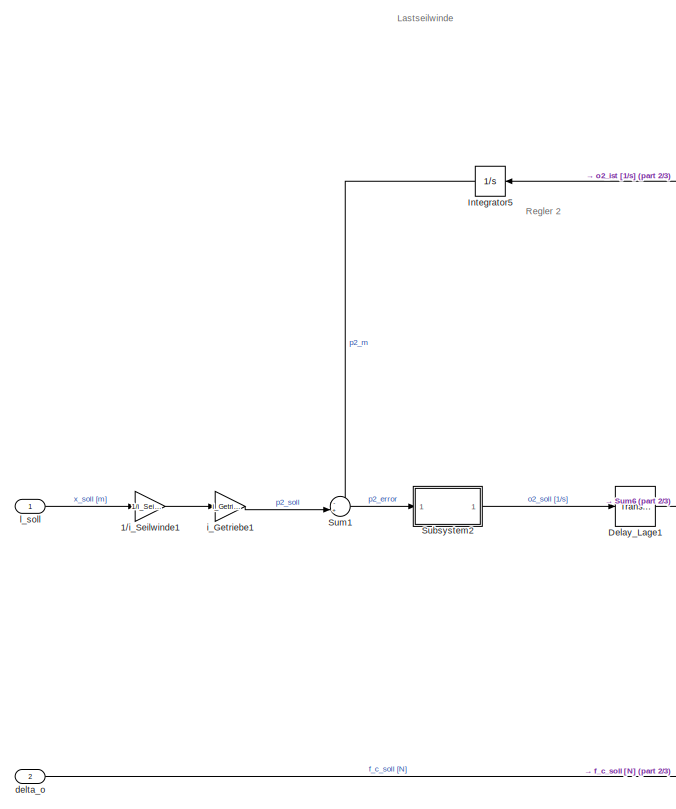
[diagram: root canvas - part 1/3, left side, full height]
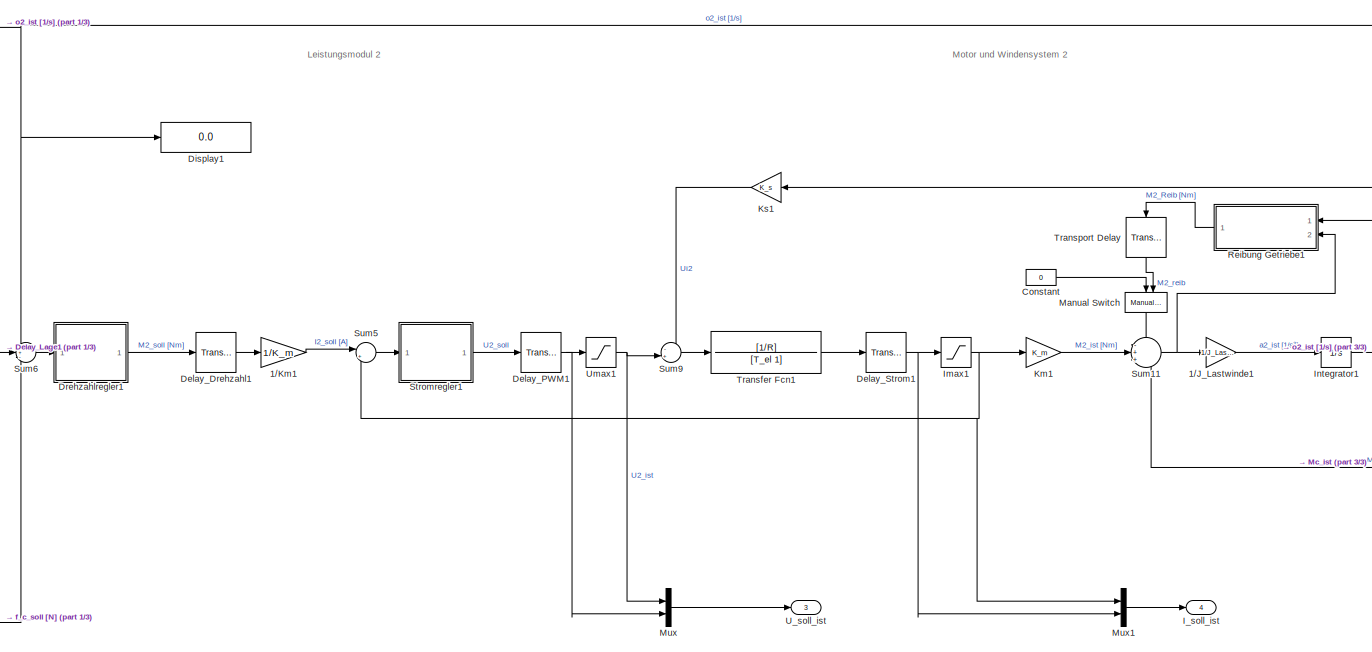
[diagram: root canvas - part 2/3, center side, full height]
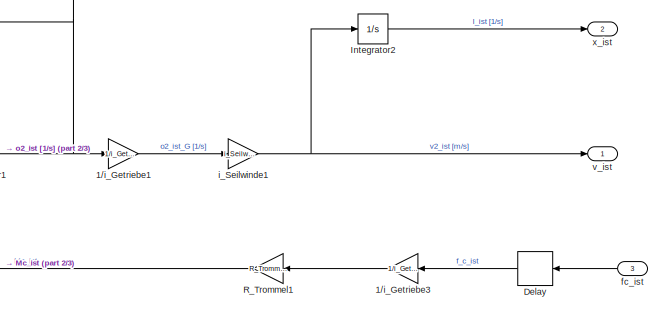
[diagram: root canvas - part 3/3, middle right region]
MODEL slx_6d760ac3472f
KIND model
CONFIG AbsTol = auto
CONFIG EnableMultiTasking = off
CONFIG FixedStep = stepsize
CONFIG MaxStep = auto
CONFIG MinStep = auto
CONFIG RelTol = 1e-3
CONFIG SampleTimeConstraint = Unconstrained
CONFIG Solver = FixedStepAuto
CONFIG SolverName = FixedStepAuto
CONFIG StartTime = 0.0
CONFIG StopTime = tend_sim
BLOCK [Gain] 1//J_Lastwinde1
  Gain = 1/J_Lastwinde
BLOCK [Gain] 1//Km1
  Gain = 1/K_m
BLOCK [Gain] 1//i_Getriebe1
  Gain = 1/i_Getriebe
BLOCK [Gain] 1//i_Getriebe3
  Gain = 1/i_Getriebe
BLOCK [Gain] 1//i_Seilwinde1
  Gain = 1/i_Seilwinde
BLOCK [Constant] Constant
  Value = 0
BLOCK [Delay] Delay
  DelayLength = 1
  InputPortMap = u0
  NameLocation = top
  Ports = [1, 1]
BLOCK [TransportDelay] Delay_Drehzahl1
  DelayTime = T_v_control
  Ports = [1, 1]
BLOCK [TransportDelay] Delay_Lage1
  DelayTime = T_x_control
  Ports = [1, 1]
BLOCK [TransportDelay] Delay_PWM1
  DelayTime = T_tot
  Ports = [1, 1]
BLOCK [TransportDelay] Delay_Strom1
  DelayTime = T_i_control
  Ports = [1, 1]
BLOCK [Display] Display1
  Decimation = 1
  Ports = [1]
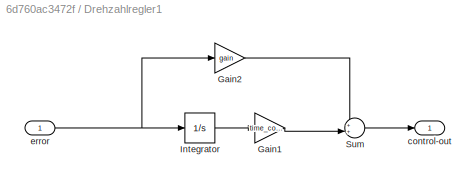
BLOCK [SubSystem] Drehzahlregler1
  Ports = [1, 1]
  RequestExecContextInheritance = off
BLOCK [Gain] Drehzahlregler1/Gain1
  Gain = time_constant
BLOCK [Gain] Drehzahlregler1/Gain2
  Gain = gain
BLOCK [Integrator] Drehzahlregler1/Integrator
  Ports = [1, 1]
BLOCK [Sum] Drehzahlregler1/Sum
  Inputs = ++|
  Ports = [2, 1]
BLOCK [Outport] Drehzahlregler1/control-out
BLOCK [Inport] Drehzahlregler1/error
BLOCK [Outport] I_soll_ist
  Port = 4
BLOCK [Saturate] Imax1
  LowerLimit = -I_max_eff
  UpperLimit = I_max_eff
BLOCK [Integrator] Integrator1
  Ports = [1, 1]
BLOCK [Integrator] Integrator2
  Ports = [1, 1]
BLOCK [Integrator] Integrator5
  NameLocation = top
  Ports = [1, 1]
BLOCK [Gain] Km1
  Gain = K_m
BLOCK [Gain] Ks1
  Gain = K_s
  NameLocation = top
BLOCK [ManualSwitch] Manual Switch
  CurrentSetting = 0
  NameLocation = left
BLOCK [Mux] Mux
  DisplayOption = bar
  Inputs = 2
  Ports = [2, 1]
BLOCK [Mux] Mux1
  DisplayOption = bar
  Inputs = 2
  Ports = [2, 1]
BLOCK [Gain] R_Trommel1
  Gain = R_Trommel
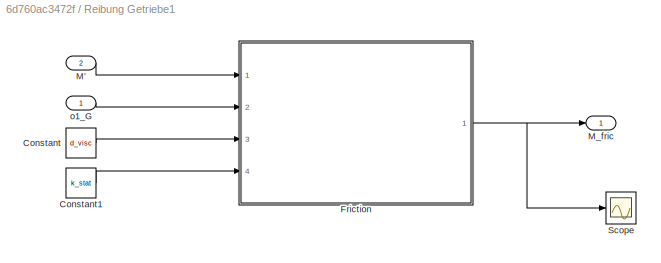
BLOCK [SubSystem] Reibung Getriebe1
  NameLocation = top
  Ports = [2, 1]
  RequestExecContextInheritance = off
BLOCK [Constant] Reibung Getriebe1/Constant
  Value = d_visc
BLOCK [Constant] Reibung Getriebe1/Constant1
  Value = k_stat
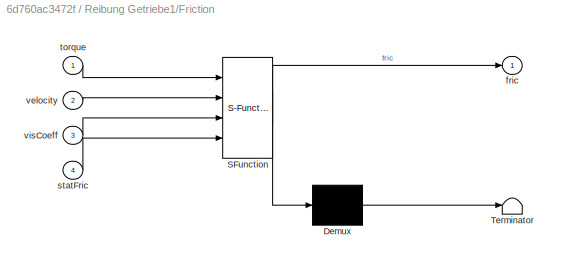
BLOCK [SubSystem] Reibung Getriebe1/Friction
  ErrorFcn = Stateflow.Translate.translate
  PermitHierarchicalResolution = ExplicitOnly
  Ports = [4, 1]
  RequestExecContextInheritance = off
  SFBlockType = MATLAB Function
  TreatAsAtomicUnit = on
BLOCK [Demux] Reibung Getriebe1/Friction/ Demux 
  Outputs = 1
  Ports = [1, 1]
BLOCK [S-Function] Reibung Getriebe1/Friction/ SFunction 
  EnableBusSupport = on
  FunctionName = sf_sfun
  PortCounts = [4 2]
  Ports = [4, 2]
  SFcnIsStateOwnerBlock = off
  SFunctionDeploymentMode = off
  Tag = Stateflow S-Function 1
BLOCK [Terminator] Reibung Getriebe1/Friction/ Terminator 
BLOCK [Outport] Reibung Getriebe1/Friction/fric
  VectorParamsAs1DForOutWhenUnconnected = off
BLOCK [Inport] Reibung Getriebe1/Friction/statFric
  Port = 4
BLOCK [Inport] Reibung Getriebe1/Friction/torque
BLOCK [Inport] Reibung Getriebe1/Friction/velocity
  Port = 2
BLOCK [Inport] Reibung Getriebe1/Friction/visCoeff
  Port = 3
BLOCK [Inport] Reibung Getriebe1/M'
  Port = 2
BLOCK [Outport] Reibung Getriebe1/M_fric
  VectorParamsAs1DForOutWhenUnconnected = off
BLOCK [Scope] Reibung Getriebe1/Scope
  Floating = off
  NumInputPorts = 1
  Ports = [1]
  ScopeSpecificationString = Simulink.scopes.TimeScopeBlockCfg('CurrentConfiguration', extmgr.ConfigurationSet(extmgr.Configuration('Core','General UI',true),extmgr.Configuration('Core','Source UI',true),extmgr.Configuration('Sources','WiredSimulink',true,'DataLoggingVariableName','ScopeData1'),extmgr.Configuration('Visuals','Time Domain',true,'SerializedDisplays',{struct('MinYLimReal','-1.35764','MaxYLimReal','1.59815','YLab...<+1697ch>
BLOCK [Inport] Reibung Getriebe1/o1_G
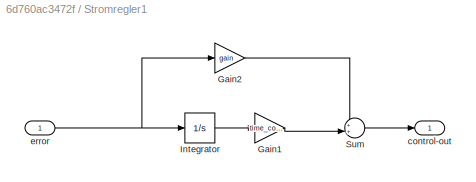
BLOCK [SubSystem] Stromregler1
  Ports = [1, 1]
  RequestExecContextInheritance = off
BLOCK [Gain] Stromregler1/Gain1
  Gain = time_constant
BLOCK [Gain] Stromregler1/Gain2
  Gain = gain
BLOCK [Integrator] Stromregler1/Integrator
  Ports = [1, 1]
BLOCK [Sum] Stromregler1/Sum
  Inputs = ++|
  Ports = [2, 1]
BLOCK [Outport] Stromregler1/control-out
BLOCK [Inport] Stromregler1/error
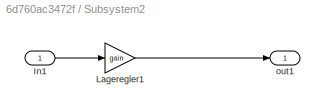
BLOCK [SubSystem] Subsystem2
  Ports = [1, 1]
  RequestExecContextInheritance = off
BLOCK [Inport] Subsystem2/In1
BLOCK [Gain] Subsystem2/Lageregler1
  Gain = gain
BLOCK [Outport] Subsystem2/out1 
BLOCK [Sum] Sum1
  Inputs = -+|
  Ports = [2, 1]
BLOCK [Sum] Sum11
  Inputs = -++
  Ports = [3, 1]
BLOCK [Sum] Sum5
  Inputs = |+-
  Ports = [2, 1]
BLOCK [Sum] Sum6
  Inputs = -+-
  Ports = [3, 1]
BLOCK [Sum] Sum9
  Inputs = -+|
  Ports = [2, 1]
BLOCK [TransferFcn] Transfer Fcn1
  ContinuousStateAttributes = 'current'
  Denominator = [T_el 1]
  Numerator = [1/R]
BLOCK [TransportDelay] Transport Delay
  DelayTime = stepsize
  NameLocation = left
  Ports = [1, 1]
BLOCK [Outport] U_soll_ist
  Port = 3
BLOCK [Saturate] Umax1
  LowerLimit = -U_z
  UpperLimit = U_z
BLOCK [Inport] delta_o 
  Port = 2
BLOCK [Inport] fc_ist
  NameLocation = top
  Port = 3
BLOCK [Gain] i_Getriebe1
  Gain = i_Getriebe
BLOCK [Gain] i_Seilwinde1
  Gain = i_Seilwinde
BLOCK [Inport] l_soll
BLOCK [Outport] v_ist 
BLOCK [Outport] x_ist
  Port = 2
ANNOTATION (root): Lastseilwinde
ANNOTATION (root): Leistungsmodul 2
ANNOTATION (root): Motor und Windensystem 2
ANNOTATION (root): Regler 2
LINE 1//J_Lastwinde1:1 -> Integrator1:1
LINE 1//Km1:1 -> Sum5:1
LINE 1//i_Getriebe1:1 -> i_Seilwinde1:1
LINE 1//i_Getriebe3:1 -> R_Trommel1:1
LINE 1//i_Seilwinde1:1 -> i_Getriebe1:1
LINE Constant:1 -> Manual Switch:1
LINE Delay:1 -> 1//i_Getriebe3:1
LINE Delay_Drehzahl1:1 -> 1//Km1:1
LINE Delay_Lage1:1 -> Sum6:2
NET Delay_PWM1:1 -> Mux:2, Umax1:1
NET Delay_Strom1:1 -> Imax1:1, Mux1:2
LINE Drehzahlregler1/Gain1:1 -> Drehzahlregler1/Sum:2
LINE Drehzahlregler1/Gain2:1 -> Drehzahlregler1/Sum:1
LINE Drehzahlregler1/Integrator:1 -> Drehzahlregler1/Gain1:1
LINE Drehzahlregler1/Sum:1 -> Drehzahlregler1/control-out:1
NET Drehzahlregler1/error:1 -> Drehzahlregler1/Gain2:1, Drehzahlregler1/Integrator:1
LINE Drehzahlregler1:1 -> Delay_Drehzahl1:1
NET Imax1:1 -> Km1:1, Mux1:1, Sum5:2
NET Integrator1:1 -> 1//i_Getriebe1:1, Display1:1, Integrator5:1, Ks1:1, Reibung Getriebe1:1, Sum6:1
LINE Integrator2:1 -> x_ist:1
LINE Integrator5:1 -> Sum1:1
LINE Km1:1 -> Sum11:2
LINE Ks1:1 -> Sum9:1
LINE Manual Switch:1 -> Sum11:1
LINE Mux1:1 -> I_soll_ist:1
LINE Mux:1 -> U_soll_ist:1
LINE R_Trommel1:1 -> Sum11:3
LINE Reibung Getriebe1/Constant1:1 -> Reibung Getriebe1/Friction:4
LINE Reibung Getriebe1/Constant:1 -> Reibung Getriebe1/Friction:3
NET Reibung Getriebe1/Friction:1 -> Reibung Getriebe1/M_fric:1, Reibung Getriebe1/Scope:1
LINE Reibung Getriebe1/M':1 -> Reibung Getriebe1/Friction:1
LINE Reibung Getriebe1/o1_G:1 -> Reibung Getriebe1/Friction:2
LINE Reibung Getriebe1:1 -> Transport Delay:1
LINE Stromregler1/Gain1:1 -> Stromregler1/Sum:2
LINE Stromregler1/Gain2:1 -> Stromregler1/Sum:1
LINE Stromregler1/Integrator:1 -> Stromregler1/Gain1:1
LINE Stromregler1/Sum:1 -> Stromregler1/control-out:1
NET Stromregler1/error:1 -> Stromregler1/Gain2:1, Stromregler1/Integrator:1
LINE Stromregler1:1 -> Delay_PWM1:1
LINE Subsystem2/In1:1 -> Subsystem2/Lageregler1:1
LINE Subsystem2/Lageregler1:1 -> Subsystem2/out1 :1
LINE Subsystem2:1 -> Delay_Lage1:1
NET Sum11:1 -> 1//J_Lastwinde1:1, Reibung Getriebe1:2
LINE Sum1:1 -> Subsystem2:1
LINE Sum5:1 -> Stromregler1:1
LINE Sum6:1 -> Drehzahlregler1:1
LINE Sum9:1 -> Transfer Fcn1:1
LINE Transfer Fcn1:1 -> Delay_Strom1:1
LINE Transport Delay:1 -> Manual Switch:2
NET Umax1:1 -> Mux:1, Sum9:2
LINE delta_o :1 -> Sum6:3
LINE fc_ist:1 -> Delay:1
LINE i_Getriebe1:1 -> Sum1:2
NET i_Seilwinde1:1 -> Integrator2:1, v_ist :1
LINE l_soll:1 -> 1//i_Seilwinde1:1
note: NET lines group one-source signal fan-out (src -> all destinations, sorted); 1:1 wires keep LINE
CHART Reibung Getriebe1/Friction states=1 transitions=1
  STATE_LABEL 'eML_blk_kernel()'
  STATE_LABEL 'SCRIPT:\n%% Viskose Reibung/Stokesreibung\nfunction fric   = fcn(torque, velocity,visCoeff,statFric)\n\n   if abs(velocity) < 0.01\n    if torque > statFric\n      fric = statFric;\n    elseif torque < -statFric\n      fric = -statFric;\n    else\n      fric = torque;\n    end   \n  else \n    fric = statFric*sign(velocity) + visCoeff*velocity*sign(velocity);   \n   end \n  \nend\n%% Stribeck-Effekt\n% function fri...<+554ch>'
CHART  states=0 transitions=0
